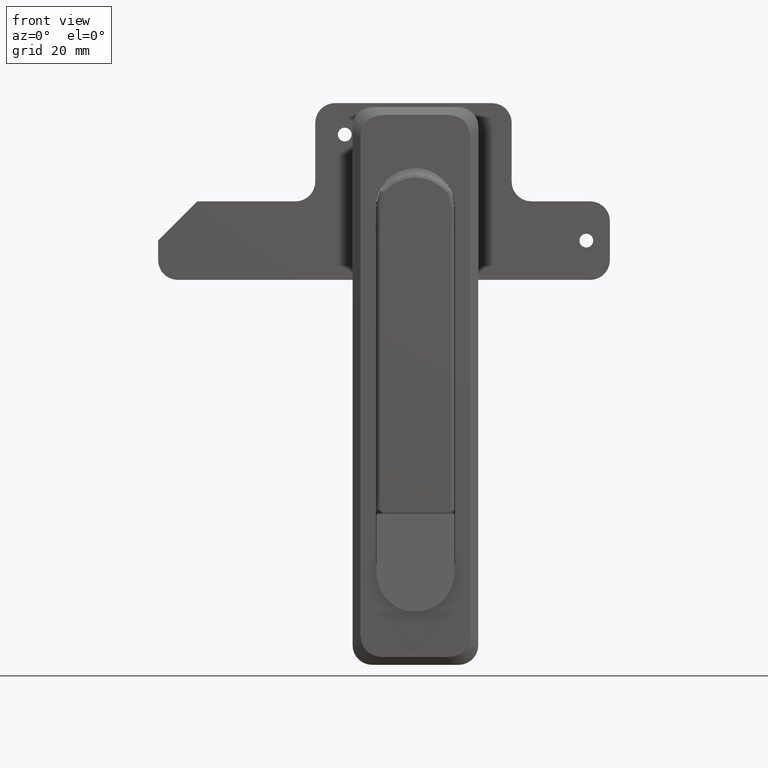
[diagram: clean part render]
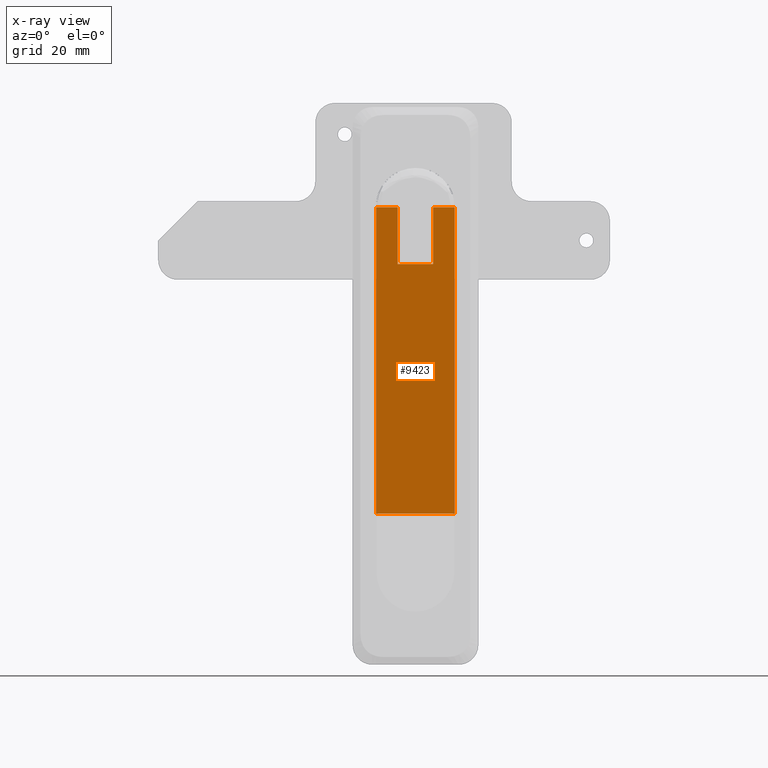
[diagram: x-ray — body ghosted, one internal face saturated and labeled with its STEP entity id]
A machine part, front view, then the same camera in x-ray: the body is ghosted and one INTERNAL B-rep face — a face not visible from any outside direction — is saturated and labeled: STEP entity #9423.
In plain terms, the highlighted face is a freeform B-spline surface patch.
Its self-contained STEP definition (entity closure, byte-faithful):
#7339=CARTESIAN_POINT('',(8.700000000000129,10.0,-96.500000000000000));
#7340=VERTEX_POINT('',#7339);
#7353=CARTESIAN_POINT('',(8.700000000000129,-10.0,-96.500000000000000));
#7354=VERTEX_POINT('',#7353);
#7360=CARTESIAN_POINT('',(8.700000000000129,-10.0,-96.500000000000000));
#7361=CARTESIAN_POINT('',(8.700000000000129,10.0,-96.500000000000000));
#7362=QUASI_UNIFORM_CURVE('',1,(#7360,#7361),.UNSPECIFIED.,.F.,.U.);
#7363=EDGE_CURVE('',#7354,#7340,#7362,.T.);
#7537=CARTESIAN_POINT('',(8.700000000000149,-10.0,-18.500000000000000));
#7538=VERTEX_POINT('',#7537);
#7553=CARTESIAN_POINT('',(8.700000000000129,-4.500000000000000,-18.500000000000000));
#7554=VERTEX_POINT('',#7553);
#7560=CARTESIAN_POINT('',(8.700000000000149,-10.0,-18.500000000000000));
#7561=CARTESIAN_POINT('',(8.700000000000129,-4.500000000000000,-18.500000000000000));
#7562=QUASI_UNIFORM_CURVE('',1,(#7560,#7561),.UNSPECIFIED.,.F.,.U.);
#7563=EDGE_CURVE('',#7538,#7554,#7562,.T.);
#7573=CARTESIAN_POINT('',(8.700000000000149,4.499999999999945,-18.500000000000000));
#7574=VERTEX_POINT('',#7573);
#7589=CARTESIAN_POINT('',(8.700000000000149,10.0,-18.500000000000000));
#7590=VERTEX_POINT('',#7589);
#7596=CARTESIAN_POINT('',(8.700000000000149,4.499999999999945,-18.500000000000000));
#7597=CARTESIAN_POINT('',(8.700000000000149,10.0,-18.500000000000000));
#7598=QUASI_UNIFORM_CURVE('',1,(#7596,#7597),.UNSPECIFIED.,.F.,.U.);
#7599=EDGE_CURVE('',#7574,#7590,#7598,.T.);
#7646=CARTESIAN_POINT('',(8.700000000000149,4.499999999999945,-33.0));
#7647=VERTEX_POINT('',#7646);
#7653=CARTESIAN_POINT('',(8.700000000000149,-4.500000000000000,-33.0));
#7654=VERTEX_POINT('',#7653);
#7655=CARTESIAN_POINT('',(8.700000000000149,-4.500000000000000,-33.0));
#7656=CARTESIAN_POINT('',(8.700000000000149,4.499999999999945,-33.0));
#7657=QUASI_UNIFORM_CURVE('',1,(#7655,#7656),.UNSPECIFIED.,.F.,.U.);
#7658=EDGE_CURVE('',#7654,#7647,#7657,.T.);
#8065=CARTESIAN_POINT('',(8.700000000000129,-10.0,-96.500000000000000));
#8066=CARTESIAN_POINT('',(8.700000000000149,-10.0,-18.500000000000000));
#8067=QUASI_UNIFORM_CURVE('',1,(#8065,#8066),.UNSPECIFIED.,.F.,.U.);
#8068=EDGE_CURVE('',#7354,#7538,#8067,.T.);
#8109=CARTESIAN_POINT('',(8.700000000000149,10.0,-18.500000000000000));
#8110=CARTESIAN_POINT('',(8.700000000000129,10.0,-96.500000000000000));
#8111=QUASI_UNIFORM_CURVE('',1,(#8109,#8110),.UNSPECIFIED.,.F.,.U.);
#8112=EDGE_CURVE('',#7590,#7340,#8111,.T.);
#9371=CARTESIAN_POINT('',(8.700000000000149,4.499999999999945,-33.0));
#9372=CARTESIAN_POINT('',(8.700000000000149,4.499999999999945,-18.500000000000000));
#9373=QUASI_UNIFORM_CURVE('',1,(#9371,#9372),.UNSPECIFIED.,.F.,.U.);
#9374=EDGE_CURVE('',#7647,#7574,#9373,.T.);
#9398=CARTESIAN_POINT('',(8.700000000000129,-4.500000000000000,-18.500000000000000));
#9399=CARTESIAN_POINT('',(8.700000000000149,-4.500000000000000,-33.0));
#9400=QUASI_UNIFORM_CURVE('',1,(#9398,#9399),.UNSPECIFIED.,.F.,.U.);
#9401=EDGE_CURVE('',#7554,#7654,#9400,.T.);
#9408=CARTESIAN_POINT('',(8.700000000000129,10.998999961236120,-14.603900151179140));
#9409=CARTESIAN_POINT('',(8.700000000000129,-10.999000497677921,-14.603900151179140));
#9410=CARTESIAN_POINT('',(8.700000000000129,10.998999961236120,-100.396101940943890));
#9411=CARTESIAN_POINT('',(8.700000000000129,-10.999000497677921,-100.396101940943890));
#9412=B_SPLINE_SURFACE_WITH_KNOTS('',1,1,((#9408,#9410),(#9409,#9411)),.UNSPECIFIED.,.F.,.F.,.U.,(2,2),(2,2),(0.0,21.998000458914039),(0.0,85.792201789764775),.UNSPECIFIED.);
#9413=ORIENTED_EDGE('',*,*,#7363,.F.);
#9414=ORIENTED_EDGE('',*,*,#8068,.T.);
#9415=ORIENTED_EDGE('',*,*,#7563,.T.);
#9416=ORIENTED_EDGE('',*,*,#9401,.T.);
#9417=ORIENTED_EDGE('',*,*,#7658,.T.);
#9418=ORIENTED_EDGE('',*,*,#9374,.T.);
#9419=ORIENTED_EDGE('',*,*,#7599,.T.);
#9420=ORIENTED_EDGE('',*,*,#8112,.T.);
#9421=EDGE_LOOP('',(#9413,#9414,#9415,#9416,#9417,#9418,#9419,#9420));
#9422=FACE_OUTER_BOUND('',#9421,.T.);
#9423=ADVANCED_FACE('',(#9422),#9412,.F.);